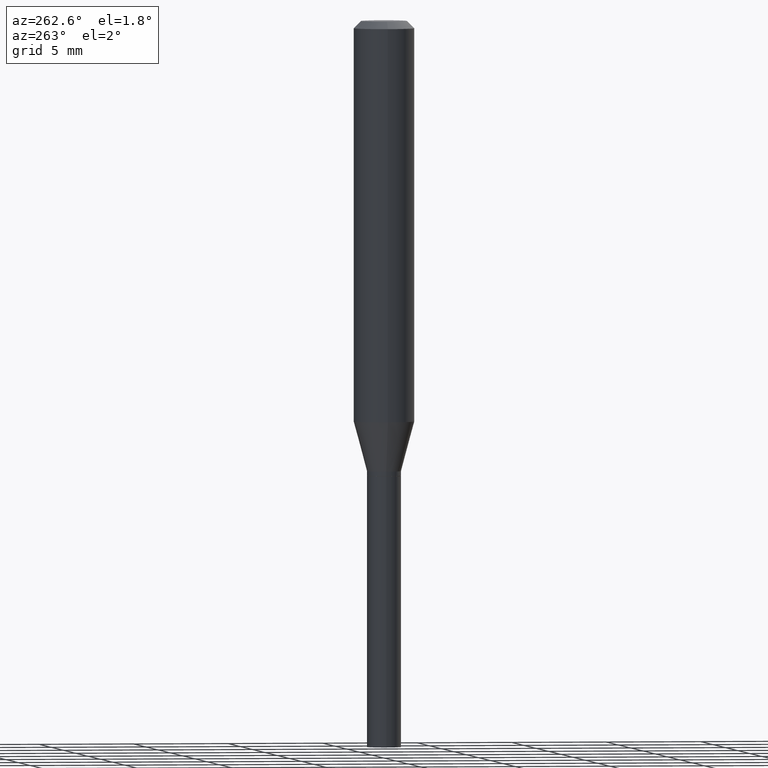
[diagram: clean part render]
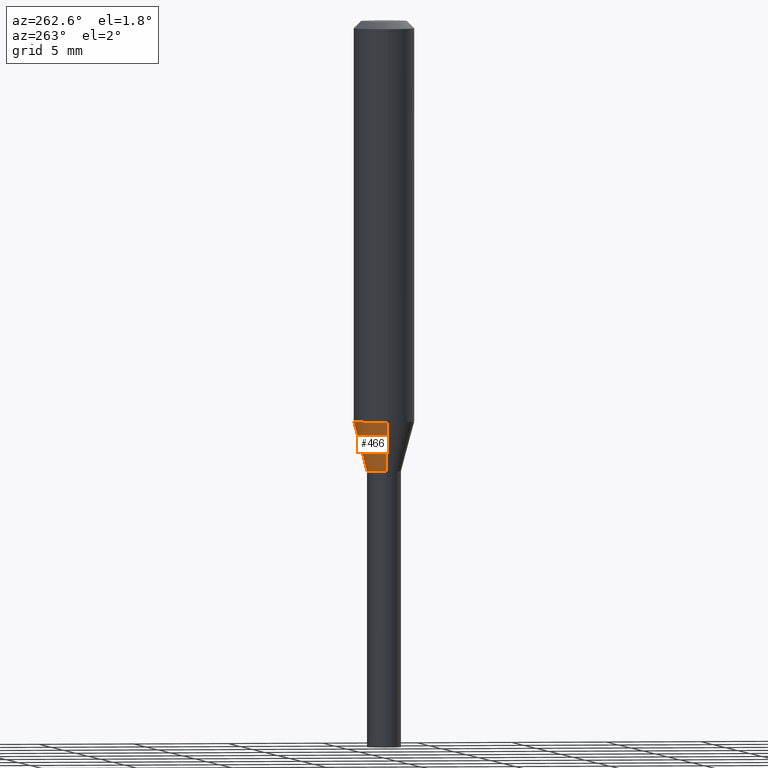
[diagram: same view with one face highlighted and labeled with its STEP entity id]
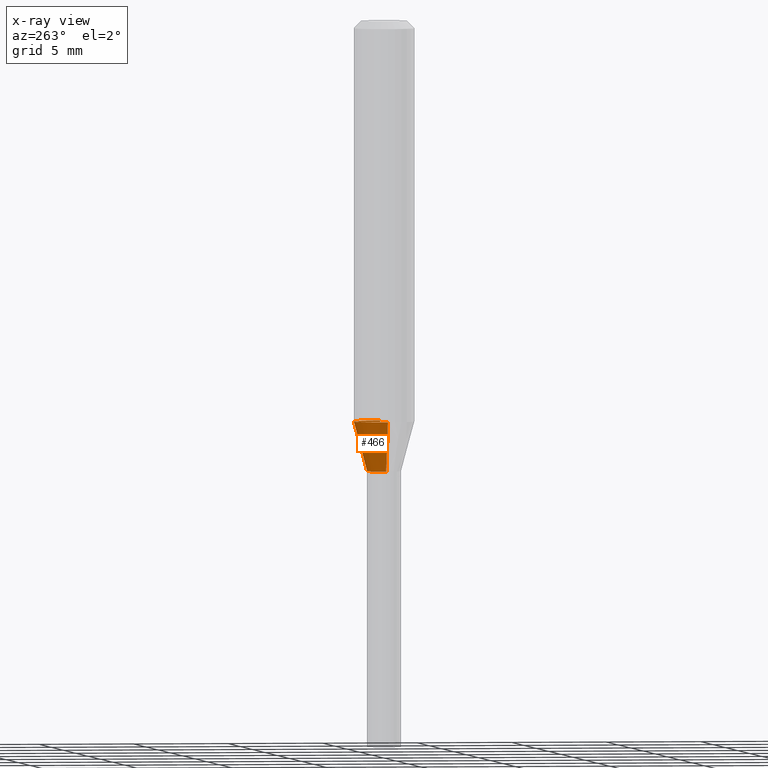
[diagram: x-ray of the same camera — body ghosted, the highlighted face saturated]
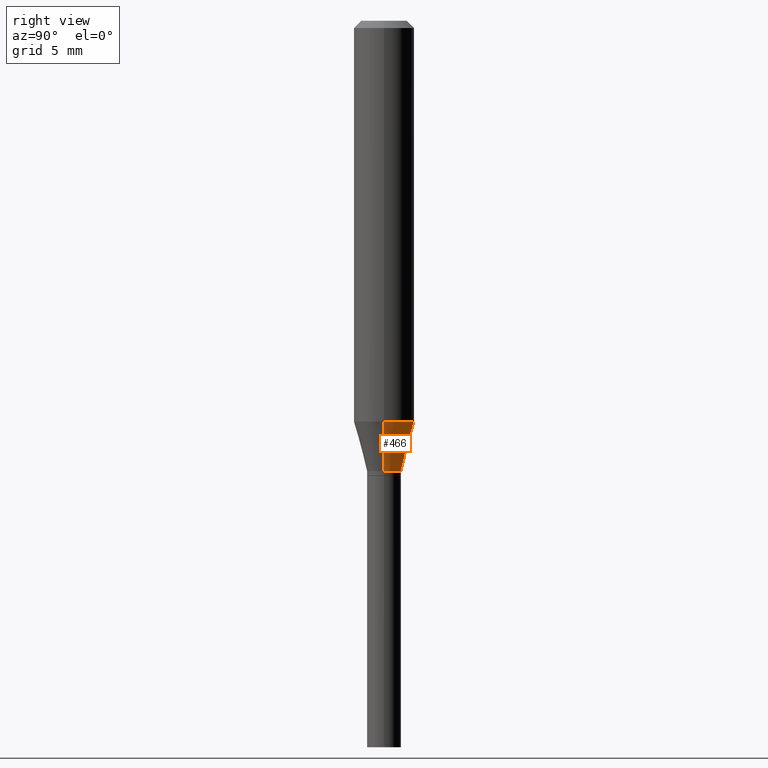
[diagram: same view with one face highlighted and labeled with its STEP entity id]
A machine part, auxiliary view. The second image highlights one B-rep face of the part: STEP entity #466.
The next image is the same camera in x-ray: the body ghosted, the highlighted face saturated — about 0% of this face is hidden behind the body in this view.
A second angle (right view) of the same face is appended — the face is thin or edge-on in the first view.
In plain terms, the highlighted conical surface has half-angle 15 deg.
Its self-contained STEP definition (entity closure, byte-faithful):
#6 = EDGE_CURVE ( 'NONE', #7, #212, #213, .T. ) ;
#7 = VERTEX_POINT ( 'NONE', #243 ) ;
#28 = DIRECTION ( 'NONE',  ( 1.000000000000000000, -6.982962677686265922E-15, 0.000000000000000000 ) ) ;
#38 = VERTEX_POINT ( 'NONE', #321 ) ;
#47 = CIRCLE ( 'NONE', #296, 0.03500000000000005884 ) ;
#62 = CARTESIAN_POINT ( 'NONE',  ( 2.274285989752177181E-29, -3.247077645124125222E-15, -0.9300000000000000488 ) ) ;
#111 = EDGE_CURVE ( 'NONE', #212, #216, #275, .T. ) ;
#125 = DIRECTION ( 'NONE',  ( 1.000000000000000000, -6.982962677686265922E-15, 0.000000000000000000 ) ) ;
#145 = EDGE_CURVE ( 'NONE', #38, #216, #399, .T. ) ;
#155 = FACE_OUTER_BOUND ( 'NONE', #239, .T. ) ;
#160 = CARTESIAN_POINT ( 'NONE',  ( 2.023304109344465538E-29, -2.888742036992493542E-15, -0.8273686027918564223 ) ) ;
#164 = CONICAL_SURFACE ( 'NONE', #328, 0.03500000000000005884, 0.2617993877991501295 ) ;
#212 = VERTEX_POINT ( 'NONE', #452 ) ;
#213 = LINE ( 'NONE', #388, #338 ) ;
#216 = VERTEX_POINT ( 'NONE', #347 ) ;
#222 = CARTESIAN_POINT ( 'NONE',  ( 2.274285989752177181E-29, -3.247077645124125222E-15, -0.9300000000000000488 ) ) ;
#239 = EDGE_LOOP ( 'NONE', ( #324, #422, #379, #313 ) ) ;
#243 = CARTESIAN_POINT ( 'NONE',  ( 0.03500000000000005884, -3.491481338843145188E-15, -0.9300000000000000488 ) ) ;
#248 = DIRECTION ( 'NONE',  ( 0.2588190451025214611, 1.565188264969621573E-15, 0.9659258262890682012 ) ) ;
#250 = EDGE_CURVE ( 'NONE', #7, #38, #47, .T. ) ;
#252 = DIRECTION ( 'NONE',  ( 1.000000000000000000, -6.982962677686262766E-15, 0.000000000000000000 ) ) ;
#254 = AXIS2_PLACEMENT_3D ( 'NONE', #160, #440, #252 ) ;
#255 = CARTESIAN_POINT ( 'NONE',  ( -0.03500000000000005884, -2.998387687608089936E-15, -0.9300000000000000488 ) ) ;
#275 = CIRCLE ( 'NONE', #254, 0.06250000000000000000 ) ;
#296 = AXIS2_PLACEMENT_3D ( 'NONE', #62, #339, #28 ) ;
#313 = ORIENTED_EDGE ( 'NONE', *, *, #6, .F. ) ;
#321 = CARTESIAN_POINT ( 'NONE',  ( -0.03500000000000005884, -2.721520257375260628E-15, -0.9300000000000000488 ) ) ;
#324 = ORIENTED_EDGE ( 'NONE', *, *, #250, .T. ) ;
#328 = AXIS2_PLACEMENT_3D ( 'NONE', #222, #332, #125 ) ;
#332 = DIRECTION ( 'NONE',  ( -2.445468806185136597E-29, 3.491481338843145583E-15, 1.000000000000000000 ) ) ;
#338 = VECTOR ( 'NONE', #248, 39.37007874015747433 ) ;
#339 = DIRECTION ( 'NONE',  ( -2.445468806185136597E-29, 3.491481338843145583E-15, 1.000000000000000000 ) ) ;
#347 = CARTESIAN_POINT ( 'NONE',  ( -0.06250000000000000000, -2.444652827142430926E-15, -0.8273686027918564223 ) ) ;
#361 = VECTOR ( 'NONE', #404, 39.37007874015747433 ) ;
#379 = ORIENTED_EDGE ( 'NONE', *, *, #111, .F. ) ;
#388 = CARTESIAN_POINT ( 'NONE',  ( 0.03500000000000005884, -3.491481338843145188E-15, -0.9300000000000000488 ) ) ;
#399 = LINE ( 'NONE', #255, #361 ) ;
#404 = DIRECTION ( 'NONE',  ( -0.2588190451025214611, 5.211531920934551042E-15, 0.9659258262890682012 ) ) ;
#422 = ORIENTED_EDGE ( 'NONE', *, *, #145, .T. ) ;
#440 = DIRECTION ( 'NONE',  ( -2.445468806185136597E-29, 3.491481338843145583E-15, 1.000000000000000000 ) ) ;
#452 = CARTESIAN_POINT ( 'NONE',  ( 0.06250000000000000000, -3.325177204347884817E-15, -0.8273686027918564223 ) ) ;
#466 = ADVANCED_FACE ( 'NONE', ( #155 ), #164, .T. ) ;